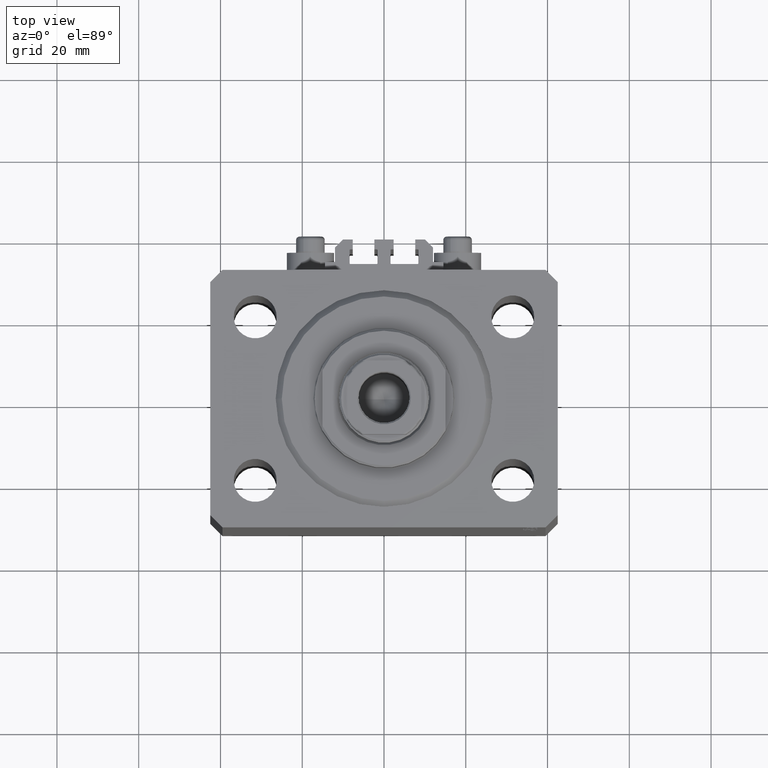
[diagram: clean part render]
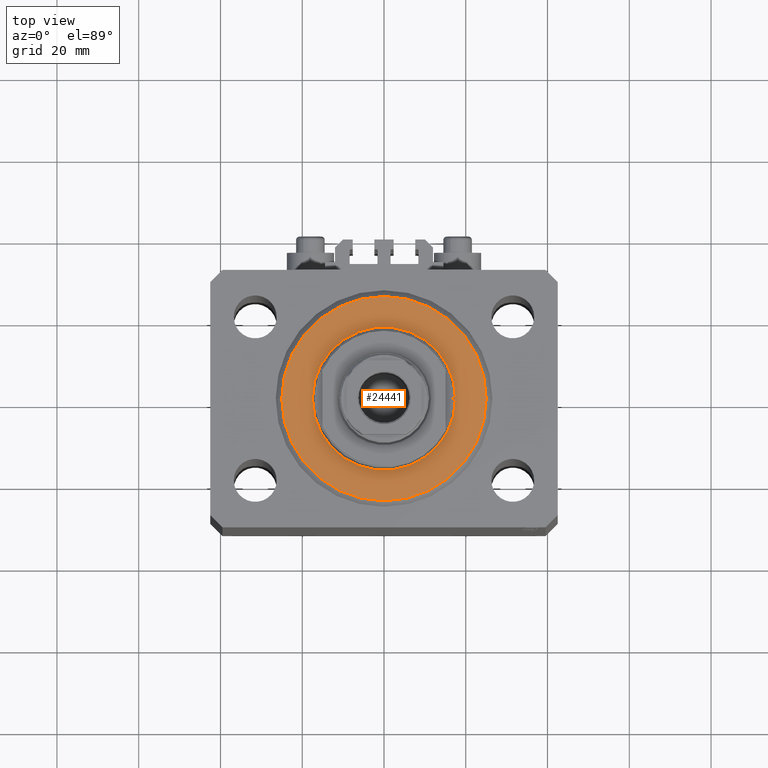
[diagram: same view with one face highlighted and labeled with its STEP entity id]
A machine part, top view. The second image highlights one B-rep face of the part: STEP entity #24441.
In plain terms, the highlighted planar face has unit normal (0, 0, -1).
Its self-contained STEP definition (entity closure, byte-faithful):
#79 = EDGE_CURVE ( 'NONE', #16974, #31215, #1494, .T. ) ;
#1043 = EDGE_CURVE ( 'NONE', #23999, #30568, #23873, .T. ) ;
#1494 = CIRCLE ( 'NONE', #19847, 17.50000000000000000 ) ;
#1986 = DIRECTION ( 'NONE',  ( 0.000000000000000000, 0.000000000000000000, 1.000000000000000000 ) ) ;
#3062 = DIRECTION ( 'NONE',  ( 0.000000000000000000, 0.000000000000000000, 1.000000000000000000 ) ) ;
#3469 = AXIS2_PLACEMENT_3D ( 'NONE', #20497, #38920, #41567 ) ;
#5779 = DIRECTION ( 'NONE',  ( -0.000000000000000000, -0.000000000000000000, -1.000000000000000000 ) ) ;
#6506 = EDGE_LOOP ( 'NONE', ( #40579, #41957 ) ) ;
#6542 = AXIS2_PLACEMENT_3D ( 'NONE', #10252, #3062, #24842 ) ;
#8545 = ORIENTED_EDGE ( 'NONE', *, *, #24556, .T. ) ;
#10252 = CARTESIAN_POINT ( 'NONE',  ( 0.000000000000000000, 0.000000000000000000, 0.000000000000000000 ) ) ;
#13002 = AXIS2_PLACEMENT_3D ( 'NONE', #20886, #1986, #16820 ) ;
#16820 = DIRECTION ( 'NONE',  ( 1.000000000000000000, 0.000000000000000000, 0.000000000000000000 ) ) ;
#16871 = CARTESIAN_POINT ( 'NONE',  ( -24.99999999999998224, 3.153465507804433615E-15, 0.000000000000000000 ) ) ;
#16974 = VERTEX_POINT ( 'NONE', #41343 ) ;
#18666 = EDGE_CURVE ( 'NONE', #31215, #16974, #33626, .T. ) ;
#18781 = CIRCLE ( 'NONE', #3469, 24.99999999999998224 ) ;
#19847 = AXIS2_PLACEMENT_3D ( 'NONE', #28691, #28220, #39687 ) ;
#20391 = DIRECTION ( 'NONE',  ( 1.000000000000000000, 0.000000000000000000, 0.000000000000000000 ) ) ;
#20497 = CARTESIAN_POINT ( 'NONE',  ( 0.000000000000000000, 0.000000000000000000, 0.000000000000000000 ) ) ;
#20886 = CARTESIAN_POINT ( 'NONE',  ( 0.000000000000000000, 0.000000000000000000, 0.000000000000000000 ) ) ;
#22539 = EDGE_LOOP ( 'NONE', ( #46769, #8545 ) ) ;
#23786 = CARTESIAN_POINT ( 'NONE',  ( 24.99999999999998224, 0.000000000000000000, 0.000000000000000000 ) ) ;
#23873 = CIRCLE ( 'NONE', #43737, 24.99999999999998224 ) ;
#23939 = CARTESIAN_POINT ( 'NONE',  ( 17.50000000000000000, 0.000000000000000000, 2.168404344971008868E-16 ) ) ;
#23999 = VERTEX_POINT ( 'NONE', #23786 ) ;
#24441 = ADVANCED_FACE ( 'NONE', ( #28444, #28679 ), #43029, .F. ) ;
#24556 = EDGE_CURVE ( 'NONE', #30568, #23999, #18781, .T. ) ;
#24842 = DIRECTION ( 'NONE',  ( 1.000000000000000000, 0.000000000000000000, -0.000000000000000000 ) ) ;
#28220 = DIRECTION ( 'NONE',  ( 0.000000000000000000, 0.000000000000000000, 1.000000000000000000 ) ) ;
#28444 = FACE_BOUND ( 'NONE', #6506, .T. ) ;
#28679 = FACE_OUTER_BOUND ( 'NONE', #22539, .T. ) ;
#28691 = CARTESIAN_POINT ( 'NONE',  ( 0.000000000000000000, 0.000000000000000000, 0.000000000000000000 ) ) ;
#30568 = VERTEX_POINT ( 'NONE', #16871 ) ;
#31215 = VERTEX_POINT ( 'NONE', #23939 ) ;
#33626 = CIRCLE ( 'NONE', #13002, 17.50000000000000000 ) ;
#38593 = CARTESIAN_POINT ( 'NONE',  ( 0.000000000000000000, 0.000000000000000000, 0.000000000000000000 ) ) ;
#38920 = DIRECTION ( 'NONE',  ( -0.000000000000000000, -0.000000000000000000, -1.000000000000000000 ) ) ;
#39687 = DIRECTION ( 'NONE',  ( 1.000000000000000000, 0.000000000000000000, 0.000000000000000000 ) ) ;
#40579 = ORIENTED_EDGE ( 'NONE', *, *, #18666, .T. ) ;
#41343 = CARTESIAN_POINT ( 'NONE',  ( -17.50000000000000000, 2.143131898507868643E-15, 2.168404344971008868E-16 ) ) ;
#41567 = DIRECTION ( 'NONE',  ( 1.000000000000000000, 0.000000000000000000, 0.000000000000000000 ) ) ;
#41957 = ORIENTED_EDGE ( 'NONE', *, *, #79, .T. ) ;
#43029 = PLANE ( 'NONE',  #6542 ) ;
#43737 = AXIS2_PLACEMENT_3D ( 'NONE', #38593, #5779, #20391 ) ;
#46769 = ORIENTED_EDGE ( 'NONE', *, *, #1043, .T. ) ;